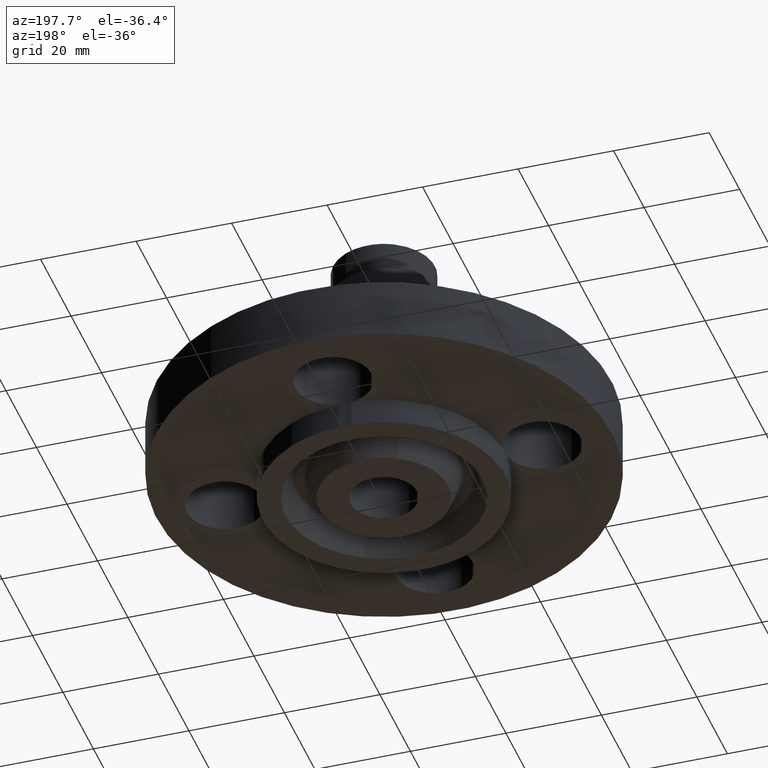
[diagram: clean part render]
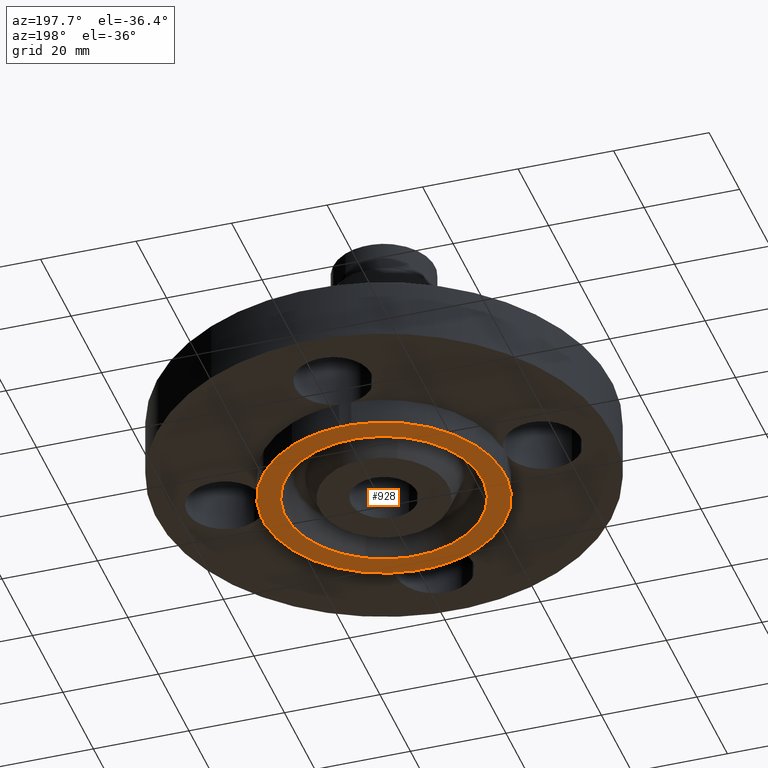
[diagram: same view with one face highlighted and labeled with its STEP entity id]
A machine part, auxiliary view. The second image highlights one B-rep face of the part: STEP entity #928.
In plain terms, the highlighted planar face has unit normal (0, 0, -1).
Its self-contained STEP definition (entity closure, byte-faithful):
#99=AXIS2_PLACEMENT_3D('Circle Axis2P3D',#97,#98,$) ;
#160=AXIS2_PLACEMENT_3D('Circle Axis2P3D',#158,#159,$) ;
#504=AXIS2_PLACEMENT_3D('Circle Axis2P3D',#502,#503,$) ;
#546=AXIS2_PLACEMENT_3D('Circle Axis2P3D',#544,#545,$) ;
#565=AXIS2_PLACEMENT_3D('Circle Axis2P3D',#563,#564,$) ;
#607=AXIS2_PLACEMENT_3D('Circle Axis2P3D',#605,#606,$) ;
#626=AXIS2_PLACEMENT_3D('Circle Axis2P3D',#624,#625,$) ;
#770=AXIS2_PLACEMENT_3D('Circle Axis2P3D',#768,#769,$) ;
#822=AXIS2_PLACEMENT_3D('Circle Axis2P3D',#820,#821,$) ;
#874=AXIS2_PLACEMENT_3D('Circle Axis2P3D',#872,#873,$) ;
#896=AXIS2_PLACEMENT_3D('Plane Axis2P3D',#893,#894,#895) ;
#912=AXIS2_PLACEMENT_3D('Circle Axis2P3D',#910,#911,$) ;
#921=AXIS2_PLACEMENT_3D('Circle Axis2P3D',#919,#920,$) ;
#94=CARTESIAN_POINT('Vertex',(0.0488269754871,0.998807251912,-0.219000000001)) ;
#97=CARTESIAN_POINT('Axis2P3D Location',(0.,1.31000000001,-0.219000000001)) ;
#101=CARTESIAN_POINT('Vertex',(-0.0488269754871,0.998807251912,-0.219000000001)) ;
#155=CARTESIAN_POINT('Vertex',(0.479425538606,0.877582561894,-0.219000000001)) ;
#158=CARTESIAN_POINT('Axis2P3D Location',(0.,0.,-0.219000000001)) ;
#502=CARTESIAN_POINT('Axis2P3D Location',(0.,0.,-0.219000000001)) ;
#506=CARTESIAN_POINT('Vertex',(-0.479425538606,-0.877582561894,-0.219000000001)) ;
#508=CARTESIAN_POINT('Vertex',(-0.998807251912,-0.0488269754871,-0.219000000001)) ;
#544=CARTESIAN_POINT('Axis2P3D Location',(0.,0.,-0.219000000001)) ;
#548=CARTESIAN_POINT('Vertex',(-0.998807251912,0.0488269754871,-0.219000000001)) ;
#563=CARTESIAN_POINT('Axis2P3D Location',(0.,0.,-0.219000000001)) ;
#567=CARTESIAN_POINT('Vertex',(0.998807251912,-0.0488269754871,-0.219000000001)) ;
#569=CARTESIAN_POINT('Vertex',(0.0488269754871,-0.998807251912,-0.219000000001)) ;
#605=CARTESIAN_POINT('Axis2P3D Location',(0.,0.,-0.219000000001)) ;
#609=CARTESIAN_POINT('Vertex',(-0.0488269754871,-0.998807251912,-0.219000000001)) ;
#624=CARTESIAN_POINT('Axis2P3D Location',(0.,0.,-0.219000000001)) ;
#628=CARTESIAN_POINT('Vertex',(0.998807251912,0.0488269754871,-0.219000000001)) ;
#768=CARTESIAN_POINT('Axis2P3D Location',(1.31000000001,-5.96562519311E-017,-0.219000000001)) ;
#820=CARTESIAN_POINT('Axis2P3D Location',(1.60428730689E-016,-1.31000000001,-0.219000000001)) ;
#872=CARTESIAN_POINT('Axis2P3D Location',(-1.31000000001,-1.00772478758E-016,-0.219000000001)) ;
#893=CARTESIAN_POINT('Axis2P3D Location',(0.,0.273000000001,-0.219000000001)) ;
#910=CARTESIAN_POINT('Axis2P3D Location',(-3.49676543189E-017,-2.09805925913E-016,-0.219000000001)) ;
#914=CARTESIAN_POINT('Vertex',(0.389533250117,-0.713035831539,-0.219000000001)) ;
#916=CARTESIAN_POINT('Vertex',(-0.389533250117,0.713035831539,-0.219000000001)) ;
#919=CARTESIAN_POINT('Axis2P3D Location',(3.49676543189E-017,-6.99353086378E-017,-0.219000000001)) ;
#98=DIRECTION('Axis2P3D Direction',(0.,-0.,-0.0393700787402)) ;
#159=DIRECTION('Axis2P3D Direction',(0.,0.,-0.0393700787402)) ;
#503=DIRECTION('Axis2P3D Direction',(0.,0.,-0.0393700787402)) ;
#545=DIRECTION('Axis2P3D Direction',(0.,0.,-0.0393700787402)) ;
#564=DIRECTION('Axis2P3D Direction',(0.,0.,-0.0393700787402)) ;
#606=DIRECTION('Axis2P3D Direction',(0.,0.,-0.0393700787402)) ;
#625=DIRECTION('Axis2P3D Direction',(0.,0.,-0.0393700787402)) ;
#769=DIRECTION('Axis2P3D Direction',(0.,-0.,-0.0393700787402)) ;
#821=DIRECTION('Axis2P3D Direction',(-0.,0.,-0.0393700787402)) ;
#873=DIRECTION('Axis2P3D Direction',(0.,0.,-0.0393700787402)) ;
#894=DIRECTION('Axis2P3D Direction',(0.,0.,-0.0393700787402)) ;
#895=DIRECTION('Axis2P3D XDirection',(0.0393700787402,0.,0.)) ;
#911=DIRECTION('Axis2P3D Direction',(0.,0.,-0.0393700787402)) ;
#920=DIRECTION('Axis2P3D Direction',(0.,0.,-0.0393700787402)) ;
#899=ORIENTED_EDGE('',*,*,#571,.T.) ;
#900=ORIENTED_EDGE('',*,*,#824,.F.) ;
#901=ORIENTED_EDGE('',*,*,#611,.T.) ;
#902=ORIENTED_EDGE('',*,*,#510,.T.) ;
#903=ORIENTED_EDGE('',*,*,#876,.F.) ;
#904=ORIENTED_EDGE('',*,*,#550,.T.) ;
#905=ORIENTED_EDGE('',*,*,#103,.F.) ;
#906=ORIENTED_EDGE('',*,*,#162,.T.) ;
#907=ORIENTED_EDGE('',*,*,#630,.T.) ;
#908=ORIENTED_EDGE('',*,*,#772,.F.) ;
#925=ORIENTED_EDGE('',*,*,#918,.F.) ;
#926=ORIENTED_EDGE('',*,*,#923,.F.) ;
#927=FACE_BOUND('',#924,.T.) ;
#928=ADVANCED_FACE('PartBody',(#909,#927),#897,.T.) ;
#100=CIRCLE('generated circle',#99,0.315000000001) ;
#161=CIRCLE('generated circle',#160,1.) ;
#505=CIRCLE('generated circle',#504,1.) ;
#547=CIRCLE('generated circle',#546,1.) ;
#566=CIRCLE('generated circle',#565,1.) ;
#608=CIRCLE('generated circle',#607,1.) ;
#627=CIRCLE('generated circle',#626,1.) ;
#771=CIRCLE('generated circle',#770,0.315000000001) ;
#823=CIRCLE('generated circle',#822,0.315000000001) ;
#875=CIRCLE('generated circle',#874,0.315000000001) ;
#913=CIRCLE('generated circle',#912,0.812500000003) ;
#922=CIRCLE('generated circle',#921,0.812500000003) ;
#103=EDGE_CURVE('',#95,#102,#100,.T.) ;
#162=EDGE_CURVE('',#95,#156,#161,.T.) ;
#510=EDGE_CURVE('',#507,#509,#505,.T.) ;
#550=EDGE_CURVE('',#549,#102,#547,.T.) ;
#571=EDGE_CURVE('',#568,#570,#566,.T.) ;
#611=EDGE_CURVE('',#610,#507,#608,.T.) ;
#630=EDGE_CURVE('',#156,#629,#627,.T.) ;
#772=EDGE_CURVE('',#568,#629,#771,.T.) ;
#824=EDGE_CURVE('',#610,#570,#823,.T.) ;
#876=EDGE_CURVE('',#549,#509,#875,.T.) ;
#918=EDGE_CURVE('',#915,#917,#913,.T.) ;
#923=EDGE_CURVE('',#917,#915,#922,.T.) ;
#898=EDGE_LOOP('',(#899,#900,#901,#902,#903,#904,#905,#906,#907,#908)) ;
#924=EDGE_LOOP('',(#925,#926)) ;
#909=FACE_OUTER_BOUND('',#898,.T.) ;
#897=PLANE('',#896) ;
#95=VERTEX_POINT('',#94) ;
#102=VERTEX_POINT('',#101) ;
#156=VERTEX_POINT('',#155) ;
#507=VERTEX_POINT('',#506) ;
#509=VERTEX_POINT('',#508) ;
#549=VERTEX_POINT('',#548) ;
#568=VERTEX_POINT('',#567) ;
#570=VERTEX_POINT('',#569) ;
#610=VERTEX_POINT('',#609) ;
#629=VERTEX_POINT('',#628) ;
#915=VERTEX_POINT('',#914) ;
#917=VERTEX_POINT('',#916) ;